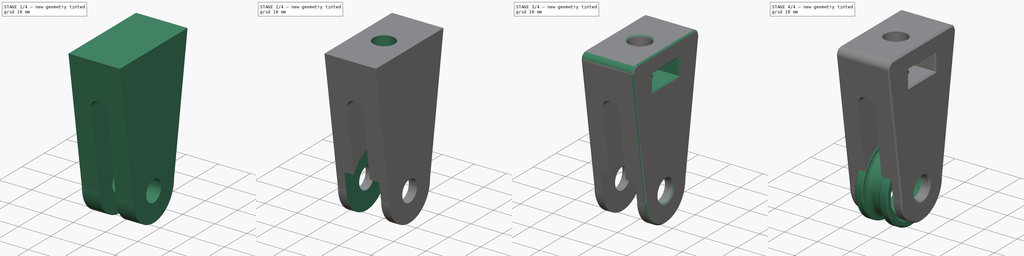
[diagram: build sequence overview — one tinted view per stage of 4, left to right]
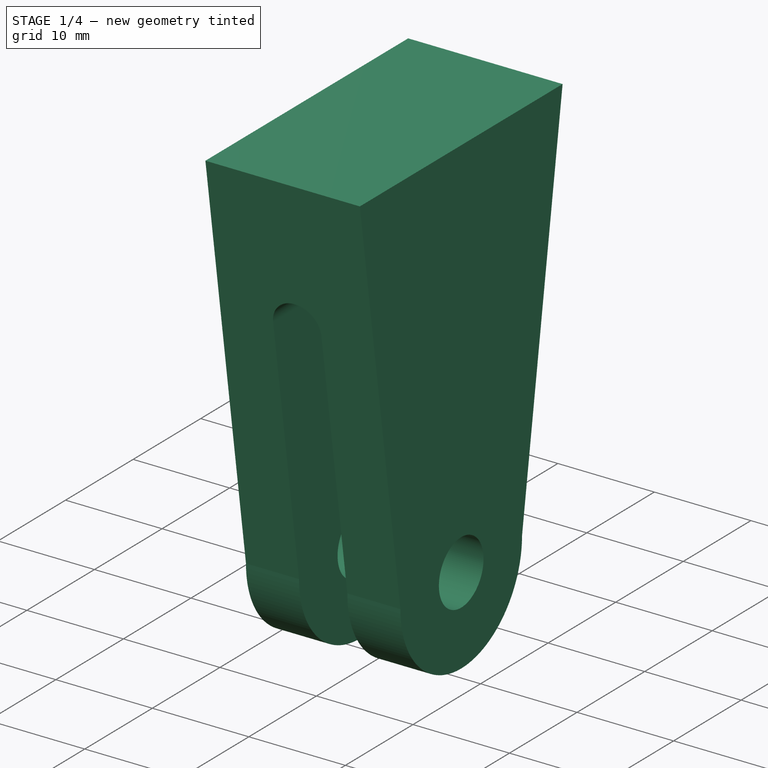
[diagram: stage 1 of 4 — iso view after this stage's code; geometry added in this stage tinted green]
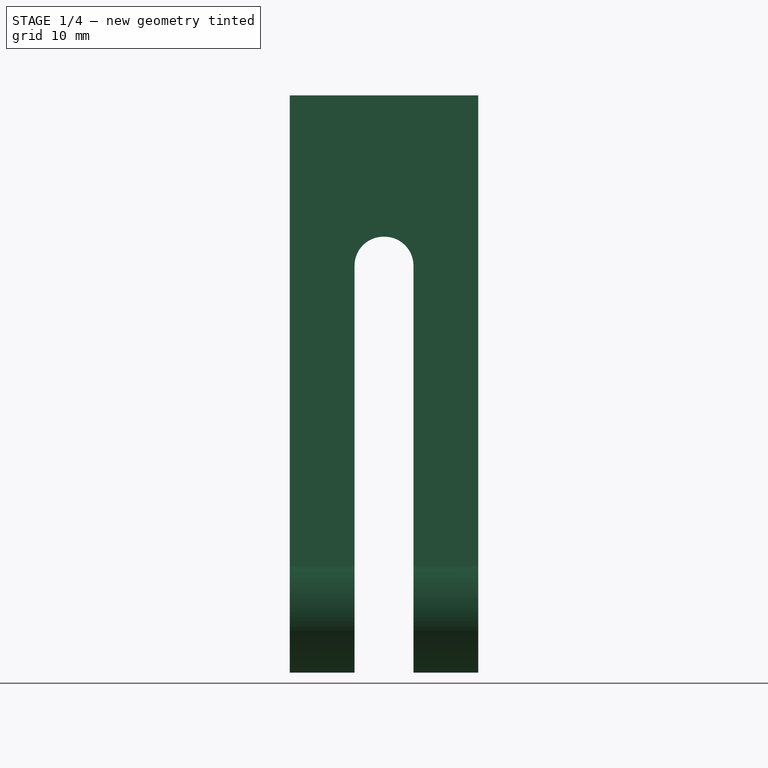
[diagram: stage 1 of 4 — front view after this stage's code; geometry added in this stage tinted green]
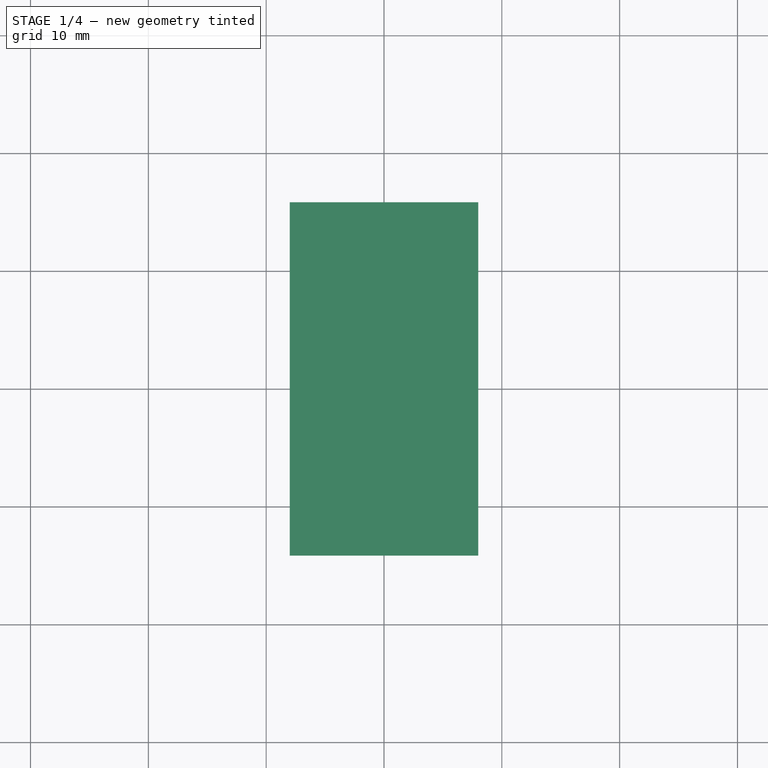
[diagram: stage 1 of 4 — top view after this stage's code; geometry added in this stage tinted green]
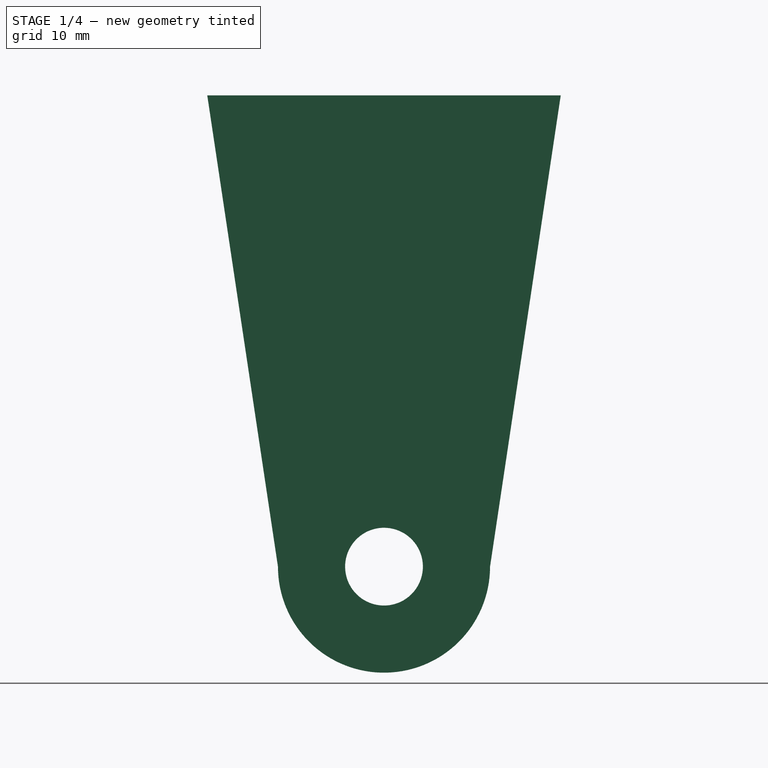
[diagram: stage 1 of 4 — right view after this stage's code; geometry added in this stage tinted green]
FCSTD DOCUMENT  (FreeCAD 1.2R20260526 (Git shallow))
Label: pulley
License: All rights reserved
LicenseURL: https://en.wikipedia.org/wiki/All_rights_reserved
objects: Sketcher::SketchObject×6, PartDesign::Pocket×4, App::Point×2, PartDesign::Body×2, Spreadsheet::Sheet×1, PartDesign::Revolution×1, PartDesign::Mirrored×1, PartDesign::SubShapeBinder×1, PartDesign::Pad×1, PartDesign::Fillet×1, PartDesign::Chamfer×1
note: 41 computed .brp shape members not serialized (recipe doc carries the construction recipe); baked Part::Feature solids carry a one-line shape summary decoded from their .brp

FEATURE [PartDesign::Body] Body  label="Sheave"
  AllowCompound = true
  Group = -> [Sketch,Revolution,Mirrored]
  Origin = -> Origin
  Tip = -> Mirrored
FEATURE [App::Point] Origin003  label="Origin-Point001"
  Role = Origin
FEATURE [PartDesign::SubShapeBinder] Binder
  BindCopyOnChange = 0
  BindMode = 0
  ClaimChildren = false
  Context = -> Body001 [Binder.]
  Fuse = false
  MakeFace = true
  OffsetFill = false
  OffsetIntersection = false
  OffsetJoinType = 0
  OffsetOpenResult = false
  PartialLoad = false
  Refine = true
  Relative = true
  Support = -> [Body]
  _Version = 2
FEATURE [Sketcher::SketchObject] Sketch002
  ArcFitTolerance = 1e-06
  AttachmentSupport = -> [Origin002]
  ExternalTypes = [0]
  FullyConstrained = false
  MakeInternals = false
  MapMode = 5
  Placement = pos=(0,0,0) rot=(0.57735,0.57735,0.57735;2.0944rad)
  expr: Constraints[9] = <<q>>.ShaftID
  sketch-geometry (5):
    g0: LineSegment StartX=-9 StartY=0 StartZ=0 EndX=-15 EndY=40 EndZ=0
    g1: LineSegment StartX=-15 StartY=40 StartZ=0 EndX=15 EndY=40 EndZ=0
    g2: LineSegment StartX=15 StartY=40 StartZ=0 EndX=9 EndY=0 EndZ=0
    g3: ArcOfCircle CenterX=0 CenterY=0 CenterZ=0 NormalX=0 NormalY=0 NormalZ=1 AngleXU=0 Radius=9 StartAngle=3.14159 EndAngle=6.28319
    g4: Circle CenterX=0 CenterY=0 CenterZ=0 NormalX=0 NormalY=0 NormalZ=1 AngleXU=0 Radius=3.3
  constraints (11):
    c: PointOnObject(g0,g-1)
    c: Coincident(g0,g1)
    c: Coincident(g1,g2)
    c: PointOnObject(g2,g-1)
    c: Coincident(g3,g-1)
    c: Coincident(g3,g2)
    c: Coincident(g0,g3)
    c: DistanceX(g1,g1) = 30
    c: Coincident(g4,g3)
    c: Diameter(g4) = 6.6
    c: Symmetric(g0,g1,g-2)
FEATURE [PartDesign::Pad] Pad
  Direction = (1,0,0)
  FuzzyTolerance = 0
  Length = 16
  Length2 = 10
  Profile = -> Sketch002
  ReferenceAxis = -> Sketch002 [N_Axis]
  Refine = true
  SideType = 2
  Suppressed = false
  Type = 0
  Type2 = 0
  expr: Length = 2 * (<<q>>.BearingThickness + <<q>>.CaseWall)
FEATURE [Sketcher::SketchObject] Sketch001
  ArcFitTolerance = 1e-06
  AttachmentSupport = -> [Origin002]
  ExternalGeometry = -> [Pad]
  ExternalTypes = [0]
  FullyConstrained = true
  MakeInternals = false
  MapMode = 5
  Placement = pos=(0,0,0) rot=(1,0,0;1.5708rad)
  expr: Constraints[6] = <<q>>.Rope
  sketch-geometry (8):
    g0: LineSegment StartX=-2.5 StartY=25.55 StartZ=0 EndX=-2.5 EndY=-12 EndZ=0
    g1: LineSegment StartX=-2.5 StartY=-12 StartZ=0 EndX=2.5 EndY=-12 EndZ=0
    g2: LineSegment StartX=2.5 StartY=-12 StartZ=0 EndX=2.5 EndY=25.55 EndZ=0
    g3: LineSegment StartX=0.05 StartY=28 StartZ=0 EndX=-0.05 EndY=28 EndZ=0
    g4: ArcOfCircle CenterX=0.05 CenterY=25.55 CenterZ=0 NormalX=0 NormalY=0 NormalZ=1 AngleXU=0 Radius=2.45 StartAngle=-5.1426e-12 EndAngle=1.5708
    g5: GeomPoint [constr] X=2.5 Y=28 Z=0
    g6: ArcOfCircle CenterX=-0.05 CenterY=25.55 CenterZ=0 NormalX=0 NormalY=0 NormalZ=1 AngleXU=0 Radius=2.45 StartAngle=1.5708 EndAngle=3.14159
    g7: GeomPoint [constr] X=-2.5 Y=28 Z=0
  constraints (19):
    c: Coincident(g0,g1)
    c: Coincident(g1,g2)
    c: Vertical(g0)
    c: Vertical(g2)
    c: Horizontal(g3)
    c: Symmetric(g1,g0,g-2)
    c: DistanceX(g1,g1) = 5
    c: DistanceY(g5,g-3) = 12
    c: DistanceY(g2,g5) = 40
    c: PointOnObject(g5,g2)
    c: PointOnObject(g5,g3)
    c: Tangent(g2,g4) = -1.5708
    c: Tangent(g3,g4) = -1.5708
    c: PointOnObject(g7,g0)
    c: PointOnObject(g7,g3)
    c: Tangent(g0,g6) = -1.5708
    c: Tangent(g3,g6) = -1.5708
    c: Equal(g4,g6)
    c: DistanceX(g3,g3) = 0.1
FEATURE [PartDesign::Pocket] Pocket
  BaseFeature = -> Pad
  Direction = (0,1,-2e-16)
  FuzzyTolerance = 0
  Length = 5
  Length2 = 5
  Profile = -> Sketch001
  ReferenceAxis = -> Sketch001 [N_Axis]
  Refine = true
  SideType = 2
  Suppressed = false
  Type = 1
  Type2 = 0
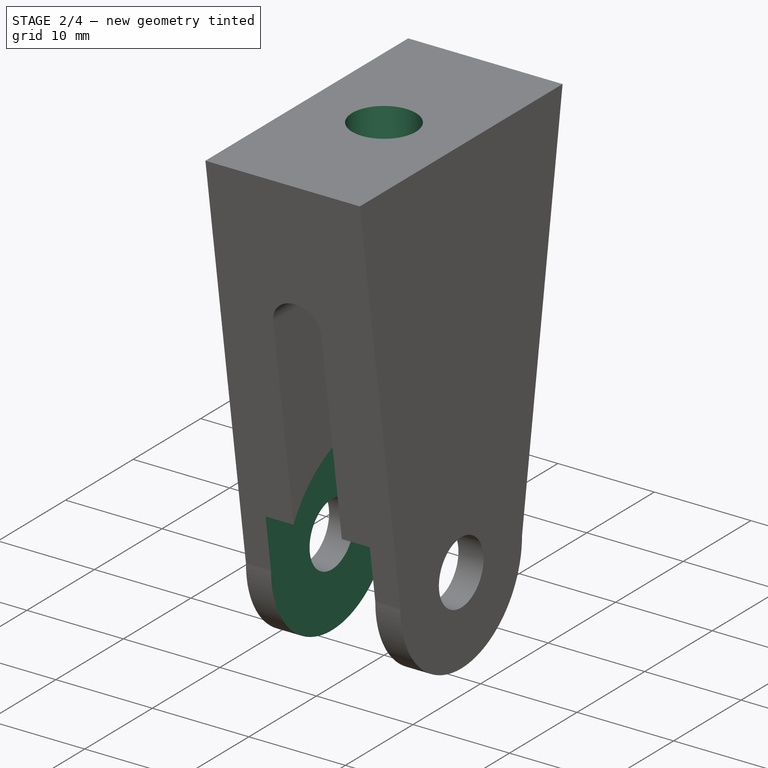
[diagram: stage 2 of 4 — iso view after this stage's code; geometry added in this stage tinted green]
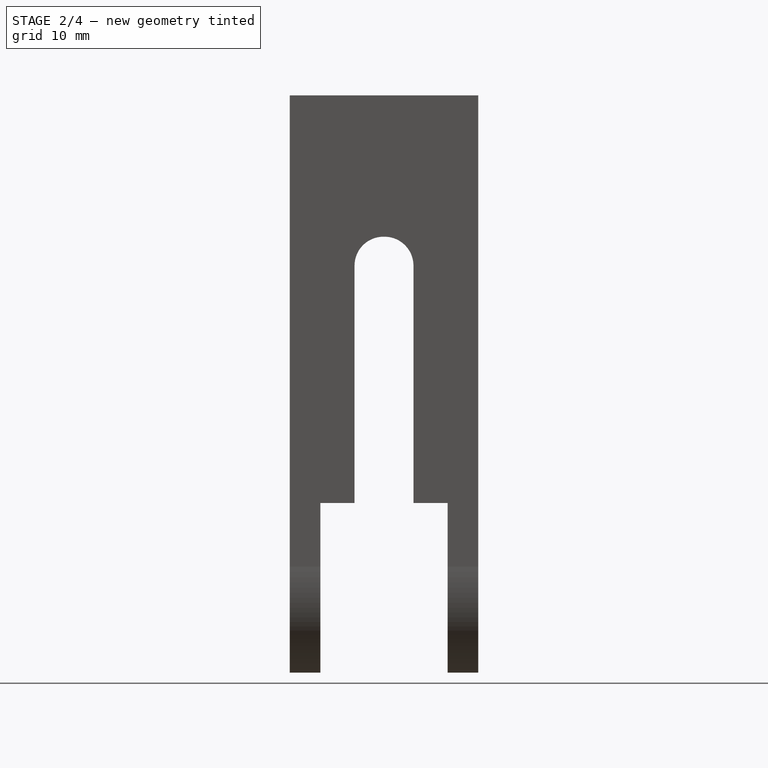
[diagram: stage 2 of 4 — front view after this stage's code; geometry added in this stage tinted green]
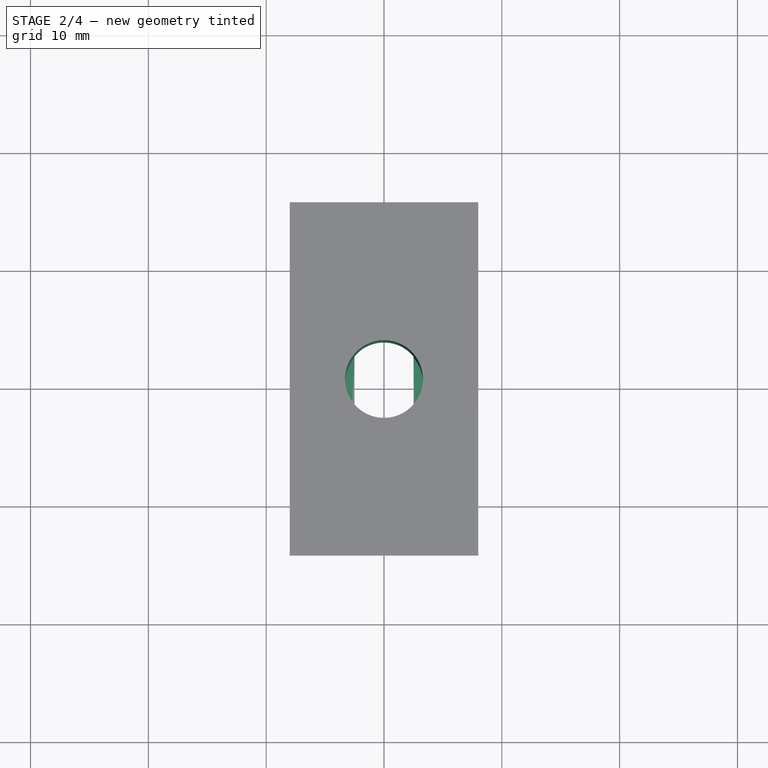
[diagram: stage 2 of 4 — top view after this stage's code; geometry added in this stage tinted green]
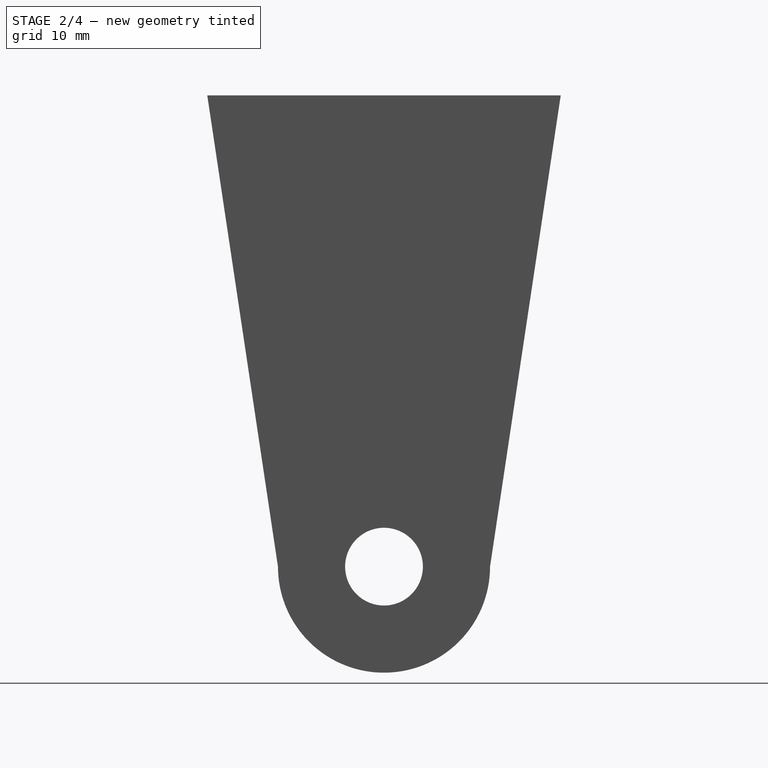
[diagram: stage 2 of 4 — right view after this stage's code; geometry added in this stage tinted green]
FEATURE [Sketcher::SketchObject] Sketch003
  ArcFitTolerance = 1e-06
  AttachmentSupport = -> [Origin002]
  ExternalTypes = [0]
  FullyConstrained = true
  MakeInternals = false
  MapMode = 5
  Placement = pos=(0,0,0) rot=(0.57735,0.57735,0.57735;2.0944rad)
  expr: Constraints[1] = <<q>>.PulleyOD + <<q>>.CaseGap
  sketch-geometry (1):
    g0: Circle CenterX=0 CenterY=0 CenterZ=0 NormalX=0 NormalY=0 NormalZ=1 AngleXU=0 Radius=11.2
  constraints (2):
    c: Coincident(g0,g-1)
    c: Diameter(g0) = 22.4
FEATURE [PartDesign::Pocket] Pocket001
  BaseFeature = -> Pocket
  Direction = (-1,0,0)
  FuzzyTolerance = 0
  Length = 10.8
  Length2 = 5
  Profile = -> Sketch003
  ReferenceAxis = -> Sketch003 [N_Axis]
  Refine = true
  SideType = 2
  Suppressed = false
  Type = 0
  Type2 = 0
  expr: Length = 2 * (<<q>>.BearingThickness + <<q>>.CaseGap)
FEATURE [Sketcher::SketchObject] Sketch004
  ArcFitTolerance = 1e-06
  AttachmentSupport = -> [Pocket001]
  ExternalTypes = [0]
  FullyConstrained = true
  MakeInternals = false
  MapMode = 5
  Placement = pos=(0,0,40) rot=(0,0,1;0rad)
  sketch-geometry (1):
    g0: Circle CenterX=0 CenterY=0 CenterZ=0 NormalX=0 NormalY=0 NormalZ=1 AngleXU=0 Radius=3.3
  constraints (2):
    c: Diameter(g0) = 6.6
    c: Coincident(g0,g-1)
FEATURE [PartDesign::Pocket] Pocket002
  BaseFeature = -> Pocket001
  Direction = (0,0,-1)
  FuzzyTolerance = 0
  Length = 20
  Length2 = 5
  Profile = -> Sketch004
  ReferenceAxis = -> Sketch004 [N_Axis]
  Refine = true
  SideType = 0
  Suppressed = false
  Type = 0
  Type2 = 0
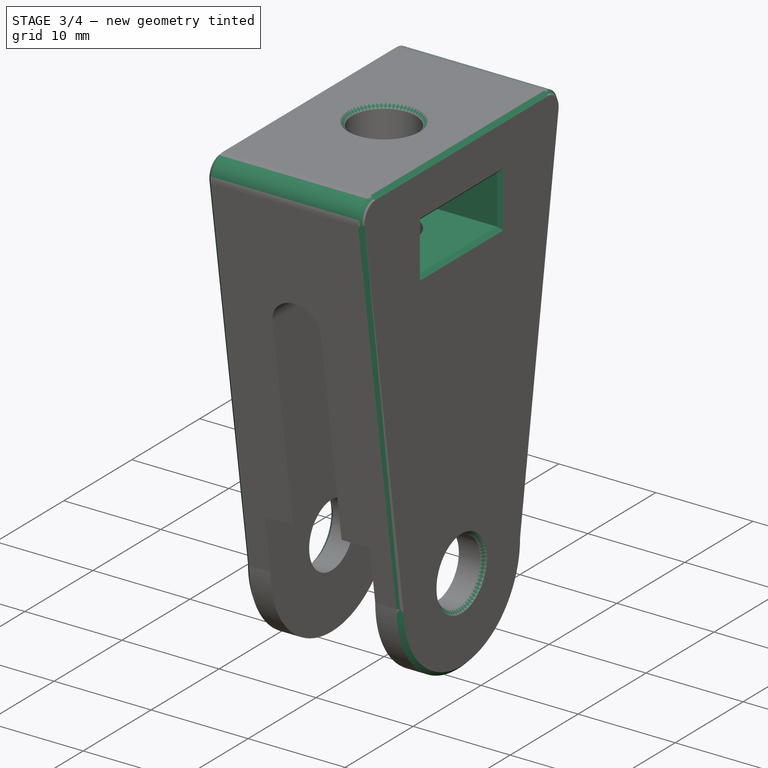
[diagram: stage 3 of 4 — iso view after this stage's code; geometry added in this stage tinted green]
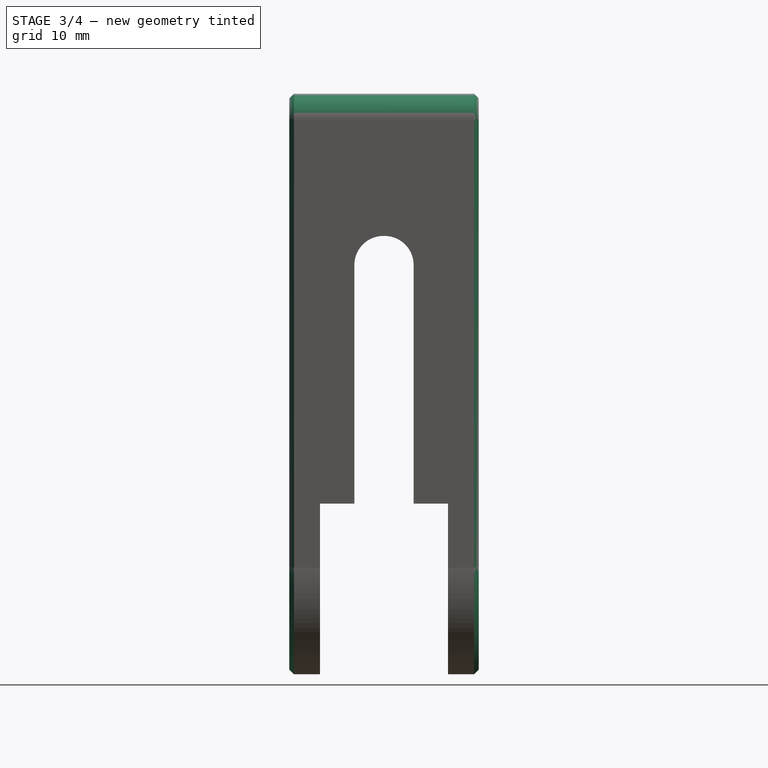
[diagram: stage 3 of 4 — front view after this stage's code; geometry added in this stage tinted green]
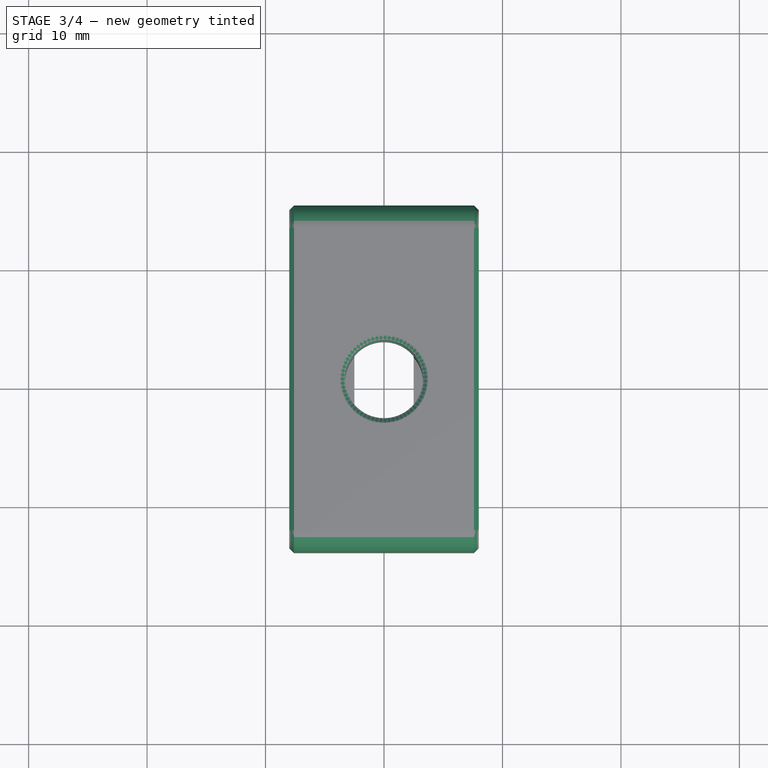
[diagram: stage 3 of 4 — top view after this stage's code; geometry added in this stage tinted green]
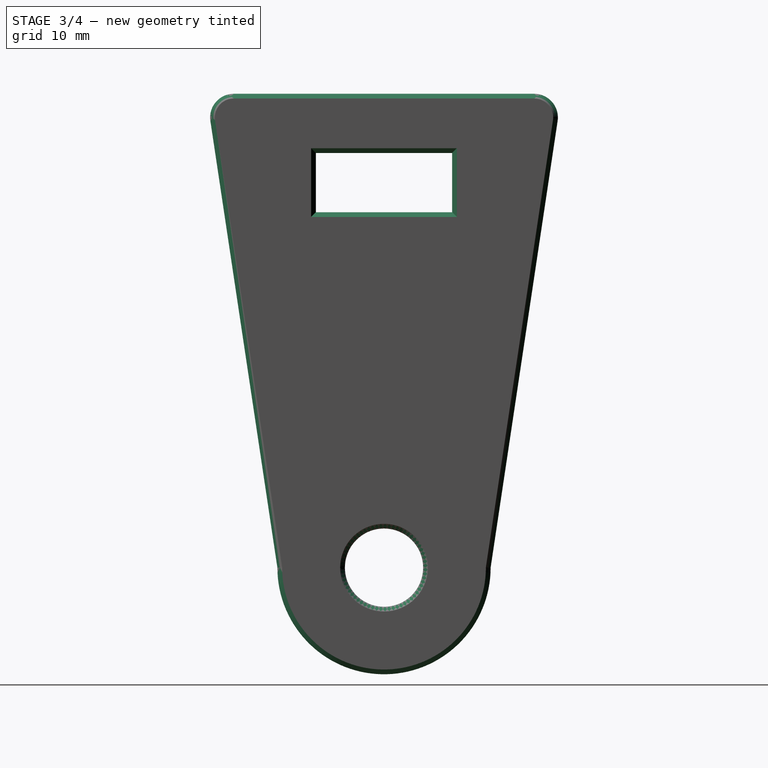
[diagram: stage 3 of 4 — right view after this stage's code; geometry added in this stage tinted green]
FEATURE [Sketcher::SketchObject] Sketch005
  ArcFitTolerance = 1e-06
  AttachmentSupport = -> [Origin002]
  ExternalGeometry = -> [Pocket002]
  ExternalTypes = [0]
  FullyConstrained = true
  MakeInternals = false
  MapMode = 5
  Placement = pos=(0,0,0) rot=(0.57735,0.57735,0.57735;2.0944rad)
  sketch-geometry (4):
    g0: LineSegment StartX=-5.75 StartY=35 StartZ=0 EndX=-5.75 EndY=30 EndZ=0
    g1: LineSegment StartX=-5.75 StartY=30 StartZ=0 EndX=5.75 EndY=30 EndZ=0
    g2: LineSegment StartX=5.75 StartY=30 StartZ=0 EndX=5.75 EndY=35 EndZ=0
    g3: LineSegment StartX=5.75 StartY=35 StartZ=0 EndX=-5.75 EndY=35 EndZ=0
  constraints (11):
    c: Coincident(g0,g1)
    c: Coincident(g1,g2)
    c: Coincident(g2,g3)
    c: Coincident(g3,g0)
    c: Vertical(g0)
    c: Vertical(g2)
    c: Horizontal(g1)
    c: DistanceX(g3,g3) = 11.5
    c: DistanceY(g2,g2) = 5
    c: Symmetric(g2,g0,g-2)
    c: DistanceY(g2,g-3) = 5
FEATURE [PartDesign::Pocket] Pocket003
  BaseFeature = -> Pocket002
  Direction = (-1,0,0)
  FuzzyTolerance = 0
  Length = 5
  Length2 = 5
  Profile = -> Sketch005
  ReferenceAxis = -> Sketch005 [N_Axis]
  Refine = true
  SideType = 2
  Suppressed = false
  Type = 1
  Type2 = 0
FEATURE [PartDesign::Fillet] Fillet
  Base = -> Pocket003 [Edge2,Edge24]
  BaseFeature = -> Pocket003
  FuzzyTolerance = 0
  Radius = 2
  Refine = true
  SupportTransform = false
  Suppressed = false
  UseAllEdges = false
FEATURE [PartDesign::Chamfer] Chamfer
  Angle = 45
  Base = -> Fillet [Face5,Face2,Edge68]
  BaseFeature = -> Fillet
  ChamferType = 0
  FlipDirection = false
  FuzzyTolerance = 0
  Refine = true
  Size = 0.4
  Size2 = 1
  SupportTransform = false
  Suppressed = false
  UseAllEdges = false
FEATURE [PartDesign::Body] Body001  label="Bracket"
  AllowCompound = true
  Group = -> [Binder,Sketch001,Sketch002,Pad,Pocket,Sketch003,Pocket001,Sketch004,Pocket002,Sketch005,Pocket003,Fillet,Chamfer]
  Origin = -> Origin002
  Tip = -> Chamfer
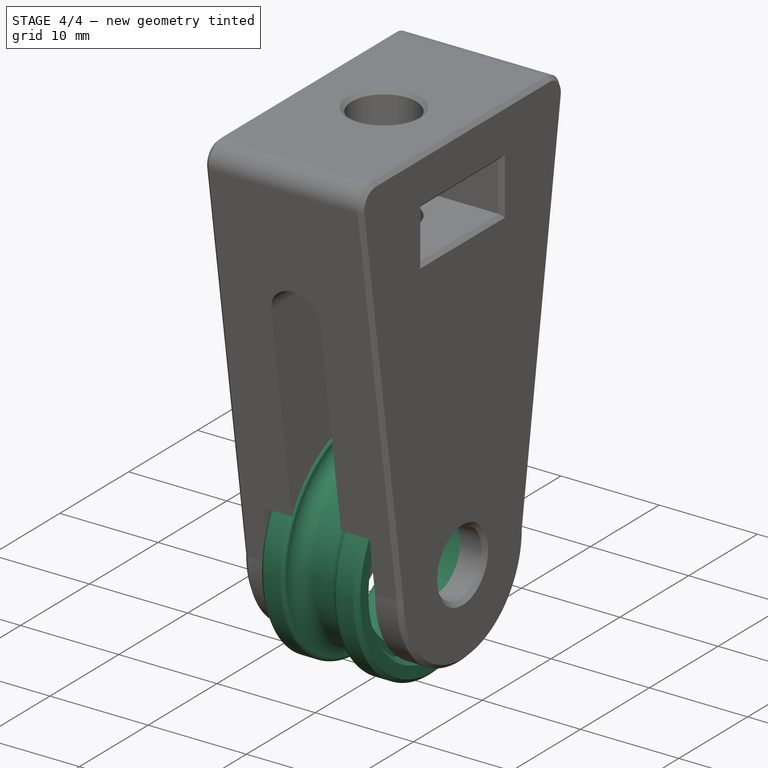
[diagram: stage 4 of 4 — iso view after this stage's code; geometry added in this stage tinted green]
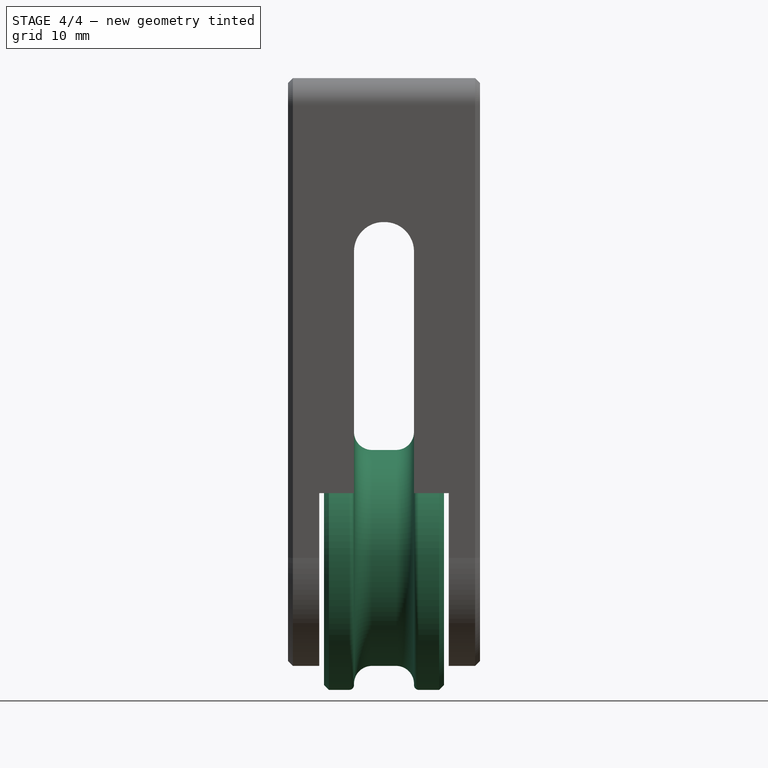
[diagram: stage 4 of 4 — front view after this stage's code; geometry added in this stage tinted green]
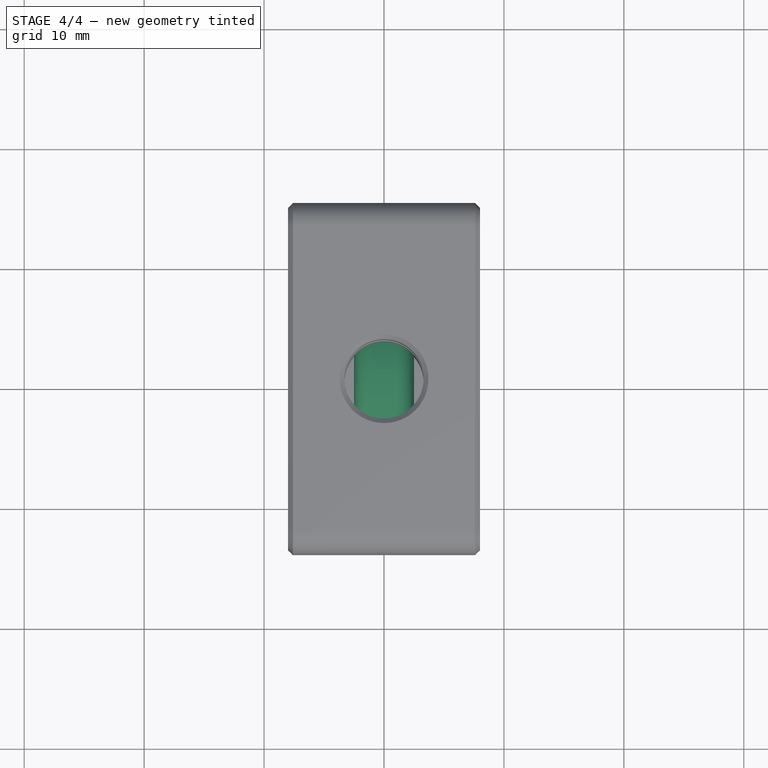
[diagram: stage 4 of 4 — top view after this stage's code; geometry added in this stage tinted green]
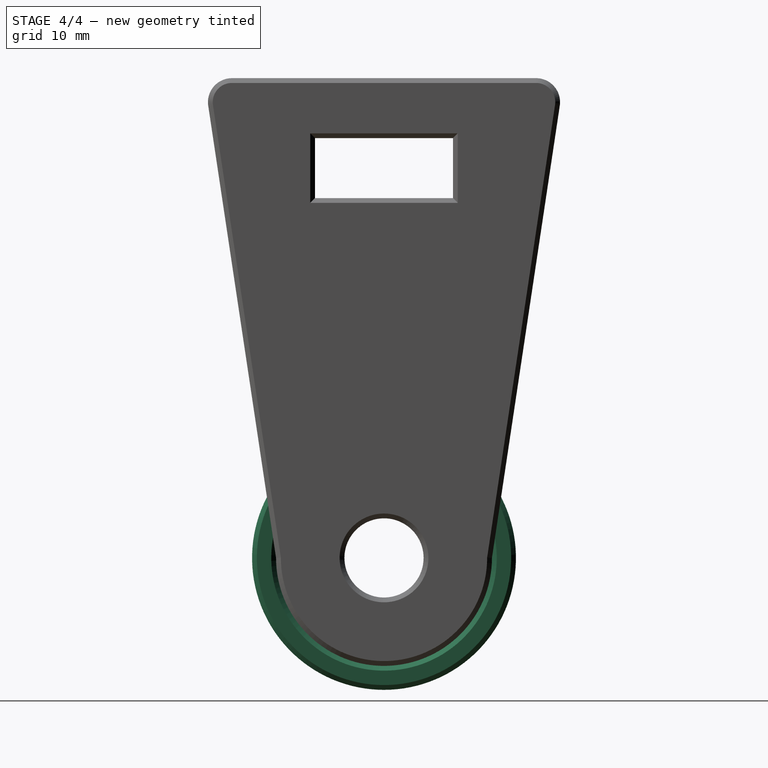
[diagram: stage 4 of 4 — right view after this stage's code; geometry added in this stage tinted green]
FEATURE [App::Point] Origin001  label="Origin-Point"
  Role = Origin
FEATURE [Spreadsheet::Sheet] Spreadsheet  label="q"
  cells = A2='Rope; B2(Rope)=5; A3='BearingCenter; B3(BearingCenter)=8.6; A4='BearingThickness; B4(BearingThickness)=5; A5='BearingID; B5(BearingID)='l; A6='BearingOD; B6(BearingOD)=16; A7='BearingLip; B7(BearingLip)=1.5; A8='BearingLipOD; B8(BearingLipOD)=18; A9='PulleyOD; B9(PulleyOD)=22; A10='PulleyRace; B10(PulleyRace)=18; A12='ShaftID; B12(ShaftID)=6.6; A13='CaseGap; B13(CaseGap)=0.4; A14='CaseWall; B14(CaseWall)=3; A15='BracketHeight; B15(BracketHeight)=40
FEATURE [Sketcher::SketchObject] Sketch
  ArcFitTolerance = 1e-06
  AttachmentSupport = -> [Origin]
  ExternalTypes = [0]
  FullyConstrained = true
  MakeInternals = false
  MapMode = 5
  Placement = pos=(0,0,0) rot=(1,0,0;1.5708rad)
  expr: Constraints[11] = <<q>>.BearingLip
  expr: Constraints[12] = <<q>>.BearingThickness
  expr: Constraints[14] = <<q>>.BearingLipOD / 2
  expr: Constraints[15] = <<q>>.PulleyRace / 2
  expr: Constraints[16] = <<q>>.PulleyOD / 2
  expr: Constraints[22] = <<q>>.Rope / 2
  expr: Constraints[8] = <<q>>.BearingOD / 2
  sketch-geometry (17):
    g0: LineSegment StartX=0 StartY=8 StartZ=0 EndX=-3.5 EndY=8 EndZ=0
    g1: LineSegment StartX=-3.5 StartY=8 StartZ=0 EndX=-3.5 EndY=9 EndZ=0
    g2: LineSegment StartX=-3.5 StartY=9 StartZ=0 EndX=-4.6 EndY=9 EndZ=0
    g3: LineSegment StartX=-5 StartY=9.4 StartZ=0 EndX=-5 EndY=10.6 EndZ=0
    g4: LineSegment StartX=-4.6 StartY=11 StartZ=0 EndX=-2.9 EndY=11 EndZ=0
    g5: LineSegment StartX=0 StartY=9 StartZ=0 EndX=0 EndY=8 EndZ=0
    g6: LineSegment StartX=-2.5 StartY=10.6 StartZ=0 EndX=-2.5 EndY=10.5 EndZ=0
    g7: LineSegment StartX=0 StartY=9 StartZ=0 EndX=-1 EndY=9 EndZ=0
    g8: ArcOfCircle CenterX=-1 CenterY=10.5 CenterZ=0 NormalX=0 NormalY=0 NormalZ=1 AngleXU=0 Radius=1.5 StartAngle=3.14159 EndAngle=4.71239
    g9: ArcOfCircle CenterX=-2.9 CenterY=10.6 CenterZ=0 NormalX=0 NormalY=0 NormalZ=1 AngleXU=0 Radius=0.4 StartAngle=0 EndAngle=1.5708
    g10: GeomPoint [constr] X=-2.5 Y=11 Z=0
    g11: ArcOfCircle [constr] CenterX=-4.6 CenterY=10.6 CenterZ=0 NormalX=0 NormalY=0 NormalZ=1 AngleXU=0 Radius=0.4 StartAngle=1.5708 EndAngle=3.14159
    g12: GeomPoint [constr] X=-5 Y=11 Z=0
    g13: LineSegment StartX=-4.6 StartY=11 StartZ=0 EndX=-5 EndY=10.6 EndZ=0
    g14: ArcOfCircle [constr] CenterX=-4.6 CenterY=9.4 CenterZ=0 NormalX=0 NormalY=0 NormalZ=1 AngleXU=0 Radius=0.4 StartAngle=3.14159 EndAngle=4.71239
    g15: GeomPoint [constr] X=-5 Y=9 Z=0
    g16: LineSegment StartX=-5 StartY=9.4 StartZ=0 EndX=-4.6 EndY=9 EndZ=0
  constraints (44):
    c: Horizontal(g0)
    c: Coincident(g0,g1)
    c: Vertical(g1)
    c: Coincident(g1,g2)
    c: Vertical(g3)
    c: Horizontal(g4)
    c: Coincident(g0,g5)
    c: Vertical(g5)
    c: DistanceY(g-1,g0) = 8
    c: PointOnObject(g0,g-2)
    c: Horizontal(g2)
    c: DistanceX(g15,g2) = 1.5
    c: DistanceX(g15,g0) = 5
    c: DistanceX(g12,g10) = 2.5
    c: DistanceY(g-1,g1) = 9
    c: DistanceY(g-1,g5) = 9
    c: DistanceY(g-1,g10) = 11
    c: Vertical(g6)
    c: Coincident(g7,g5)
    c: Horizontal(g7)
    c: Tangent(g8,g6) = -1.5708
    c: Tangent(g8,g7) = 1.5708
    c: DistanceX(g10,g5) = 2.5
    c: DistanceX(g7,g7) = 1
    c: DistanceY(g6,g10) = 0.5
    c: PointOnObject(g10,g4)
    c: PointOnObject(g10,g6)
    c: Tangent(g4,g9) = 1.5708
    c: Tangent(g6,g9) = 1.5708
    c: Radius(g9) = 0.4
    c: PointOnObject(g12,g3)
    c: PointOnObject(g12,g4)
    c: Tangent(g3,g11) = 1.5708
    c: Tangent(g4,g11) = 1.5708
    c: Coincident(g13,g3)
    c: Coincident(g13,g4)
    c: Radius(g11) = 0.4
    c: PointOnObject(g15,g2)
    c: PointOnObject(g15,g3)
    c: Tangent(g2,g14) = 1.5708
    c: Tangent(g3,g14) = 1.5708
    c: Coincident(g16,g2)
    c: Coincident(g16,g3)
    c: Equal(g14,g11)
FEATURE [PartDesign::Revolution] Revolution
  Angle = 360
  Angle2 = 0
  Axis = (1,0,0)
  Base = (0,0,0)
  FuseOrder = 0
  FuzzyTolerance = 0
  Profile = -> Sketch
  ReferenceAxis = -> X_Axis
  Refine = true
  Suppressed = false
  Type = 0
FEATURE [PartDesign::Mirrored] Mirrored
  BaseFeature = -> Revolution
  FuzzyTolerance = 0
  MirrorPlane = -> Sketch [V_Axis]
  Originals = -> [Revolution]
  Refine = true
  Suppressed = false
  TransformMode = 0
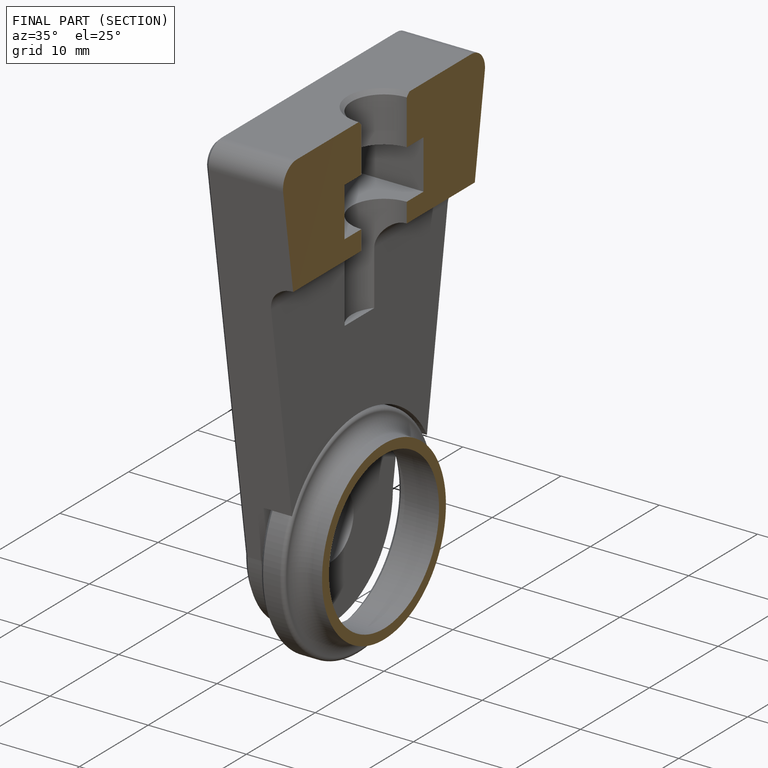
[diagram: finished part — half-section view (interior)]
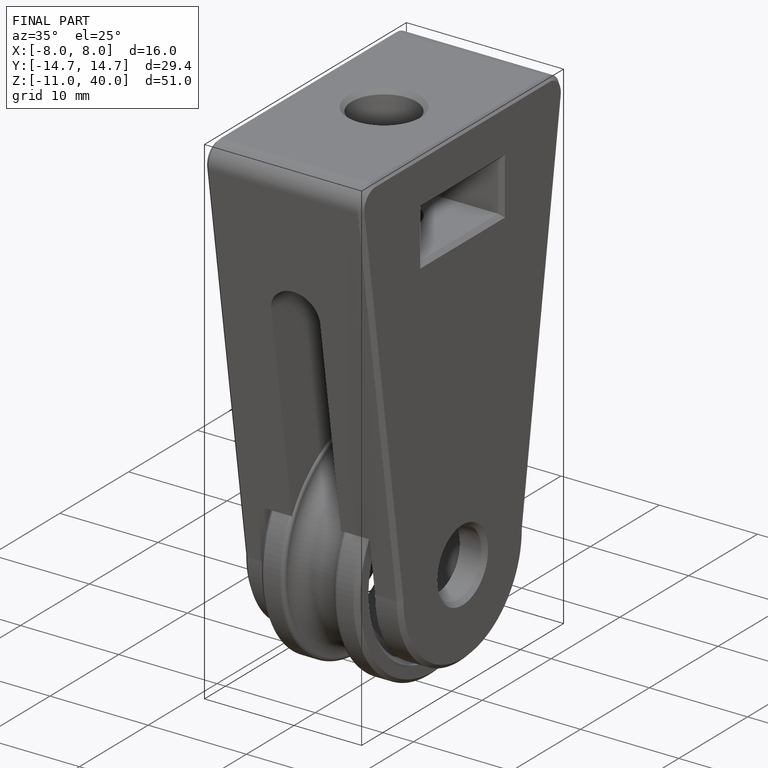
[diagram: finished part — iso view with bounding-box wireframe]
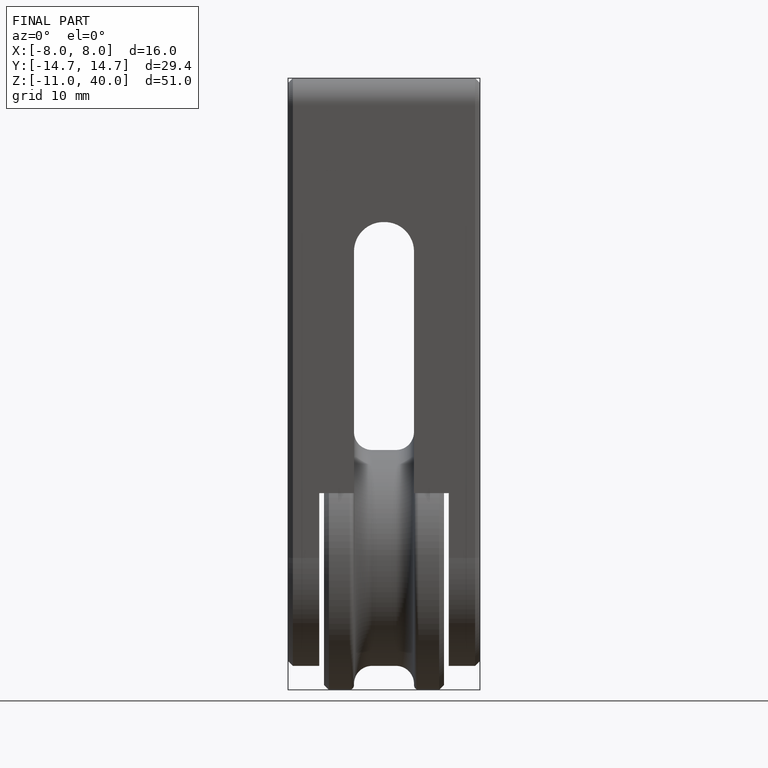
[diagram: finished part — front view with bounding-box wireframe]
